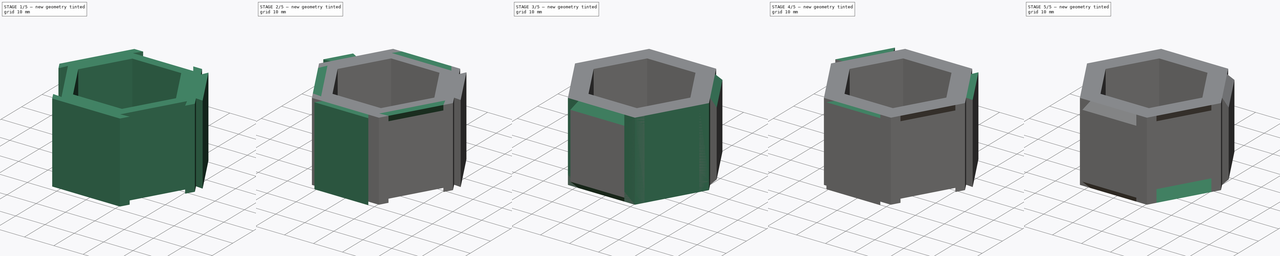
[diagram: build sequence overview — one tinted view per stage of 5, left to right]
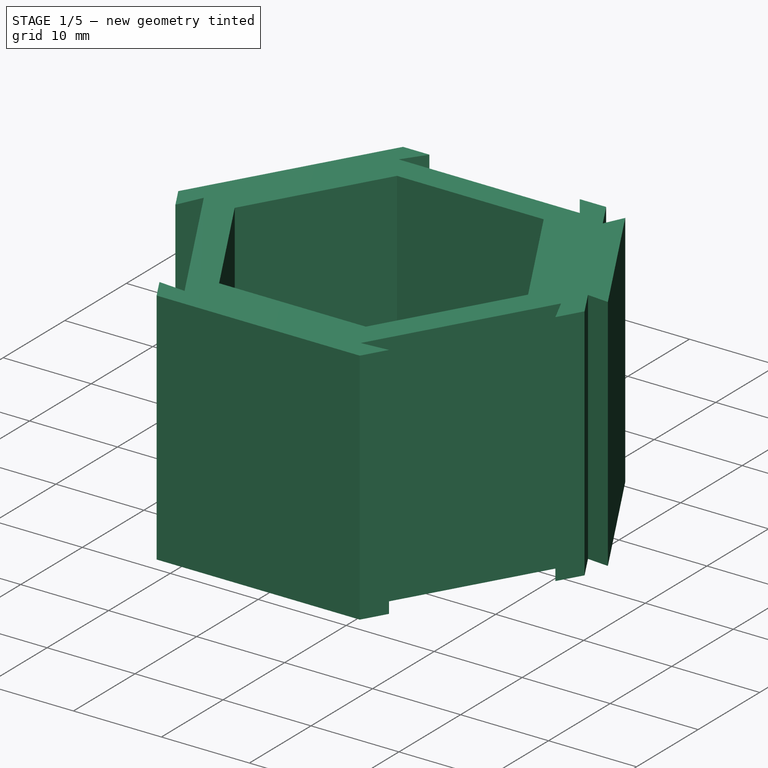
[diagram: stage 1 of 5 — iso view after this stage's code; geometry added in this stage tinted green]
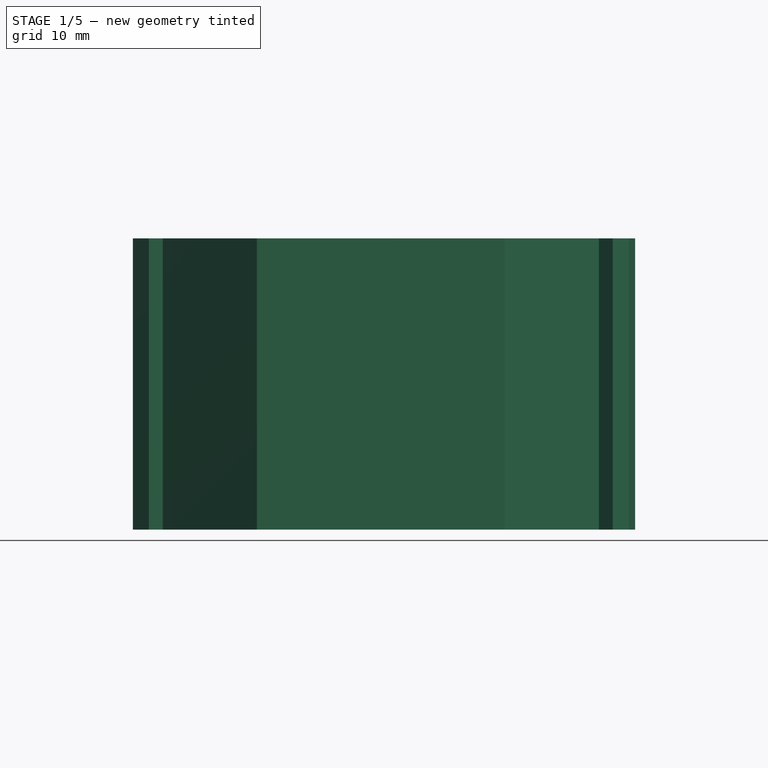
[diagram: stage 1 of 5 — front view after this stage's code; geometry added in this stage tinted green]
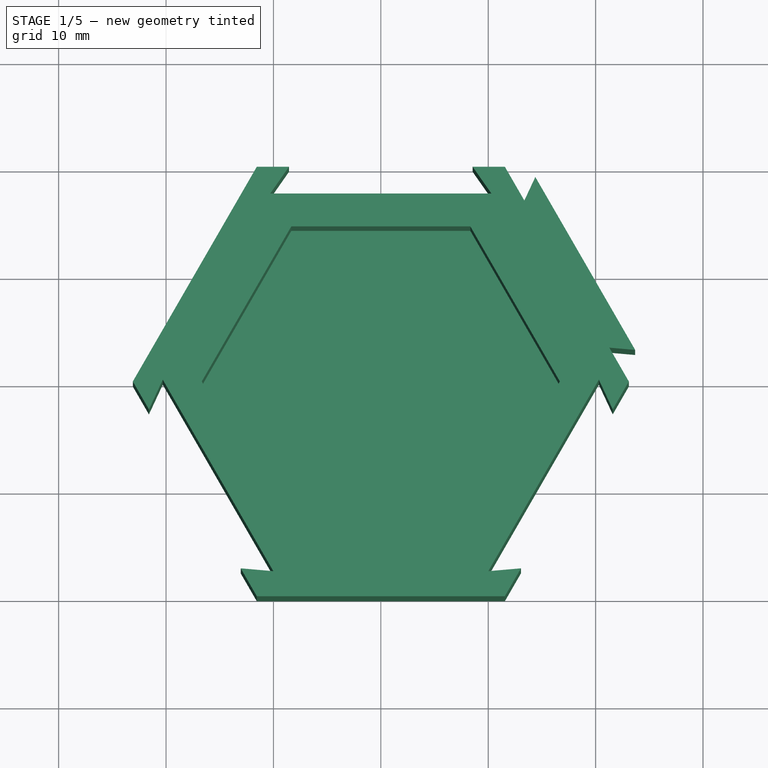
[diagram: stage 1 of 5 — top view after this stage's code; geometry added in this stage tinted green]
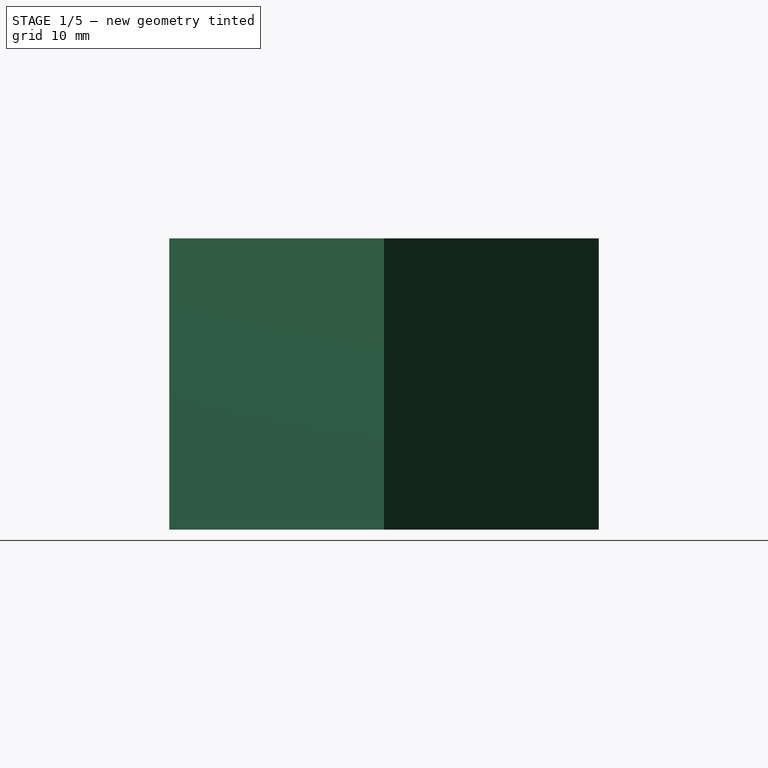
[diagram: stage 1 of 5 — right view after this stage's code; geometry added in this stage tinted green]
FCSTD DOCUMENT  (FreeCAD 2022.505R14555 (Git shallow))
Label: bottles_container
License: All rights reserved
objects: Sketcher::SketchObject×12, PartDesign::Pad×8, PartDesign::PolarPattern×8, PartDesign::Plane×4, PartDesign::Pocket×4, PartDesign::Mirrored×4, PartDesign::Body×2, Spreadsheet::Sheet×1
note: 90 computed .brp shape members not serialized (recipe doc carries the construction recipe); baked Part::Feature solids carry a one-line shape summary decoded from their .brp

FEATURE [PartDesign::Body] Body004  label="Modular box double joint"
  AutoGroupSolids = false
  ClaimAllChildren = false
  ExportMode = 0
  Group = -> [Sketch023,Pad007,Sketch024,Pad008,Sketch025,Pocket011,PolarPattern004,Sketch026,Pad009,PolarPattern005,DatumPlane002,Sketch027,Pad010,Mirrored005,PolarPattern006,DatumPlane003,Sketch028,Pocket012,Mirrored006,PolarPattern007]
  Origin = -> Origin004
  Tip = -> PolarPattern007
  TreeRank = 0
  _ExportChildren = -> [Pad007,Pad008,Pocket011,PolarPattern004,Pad009,PolarPattern005,DatumPlane002,Pad010,Mirrored005,PolarPattern006,DatumPlane003,Pocket012,Mirrored006,PolarPattern007]
  _GroupVersion = 1
FEATURE [PartDesign::Plane] DatumPlane004
  AttachmentOffset = pos=(0,0,0) rot=(0,1,0;0.523599rad)
  Length = 10
  MapMode = 5
  MinimumLength = 10
  MinimumWidth = 10
  Placement = pos=(0,0,0) rot=(0.935113,0.250563,0.250563;1.63783rad)
  ResizeMode = 0
  Support = -> [XZ_Plane005]
  TreeRank = 0
  Width = 10
FEATURE [PartDesign::Plane] DatumPlane005
  AttachmentOffset = pos=(0,0,0) rot=(0,-1,0;0.523599rad)
  Length = 79.989
  MapMode = 5
  MinimumLength = 10
  MinimumWidth = 10
  Placement = pos=(0,0,0) rot=(0.935113,-0.250563,-0.250563;1.63783rad)
  ResizeMode = 0
  Support = -> [XZ_Plane005]
  TreeRank = 0
  Width = 61.6877
FEATURE [Sketcher::SketchObject] Sketch029
  FullyConstrained = true
  MapMode = 2
  TreeRank = 0
  expr: Constraints[18] = Spreadsheet.current_bottle_d + Spreadsheet.insert_clearance * 2
  expr: Constraints[39] = Spreadsheet.box_outer_width
  sketch-geometry (14):
    g0: LineSegment StartX=8.33694 StartY=-14.44 StartZ=0 EndX=16.6739 EndY=8.8463e-12 EndZ=0
    g1: LineSegment StartX=16.6739 StartY=8.8468e-12 StartZ=0 EndX=8.33694 EndY=14.44 EndZ=0
    g2: LineSegment StartX=8.33694 StartY=14.44 StartZ=0 EndX=-8.33694 EndY=14.44 EndZ=0
    g3: LineSegment StartX=-8.33694 StartY=14.44 StartZ=0 EndX=-16.6739 EndY=5.8815e-12 EndZ=0
    g4: LineSegment StartX=-16.6739 StartY=5.8817e-12 StartZ=0 EndX=-8.33694 EndY=-14.44 EndZ=0
    g5: LineSegment StartX=-8.33694 StartY=-14.44 StartZ=0 EndX=8.33694 EndY=-14.44 EndZ=0
    g6: Circle [constr] CenterX=0 CenterY=0 CenterZ=0 NormalX=0 NormalY=0 NormalZ=1 AngleXU=0 Radius=16.6739
    g7: LineSegment StartX=11.547 StartY=-20 StartZ=0 EndX=23.094 EndY=-9.273e-13 EndZ=0
    g8: LineSegment StartX=23.094 StartY=-9.266e-13 StartZ=0 EndX=11.547 EndY=20 EndZ=0
    g9: LineSegment StartX=11.547 StartY=20 StartZ=0 EndX=-11.547 EndY=20 EndZ=0
    g10: LineSegment StartX=-11.547 StartY=20 StartZ=0 EndX=-23.094 EndY=9.237e-13 EndZ=0
    g11: LineSegment StartX=-23.094 StartY=9.231e-13 StartZ=0 EndX=-11.547 EndY=-20 EndZ=0
    g12: LineSegment StartX=-11.547 StartY=-20 StartZ=0 EndX=11.547 EndY=-20 EndZ=0
    g13: Circle [constr] CenterX=0 CenterY=0 CenterZ=0 NormalX=0 NormalY=0 NormalZ=1 AngleXU=0 Radius=23.094
  constraints (32):
    c: Coincident(g0,g1)
    c: Coincident(g1,g2)
    c: Coincident(g2,g3)
    c: Coincident(g3,g4)
    c: Coincident(g4,g5)
    c: Coincident(g5,g0)
    c: Equal(g0, g1-g5) x5
    c: PointOnObject(g0,g6)
    c: PointOnObject(g1,g6)
    c: PointOnObject(g2,g6)
    c: PointOnObject(g3,g6)
    c: PointOnObject(g4,g6)
    c: PointOnObject(g5,g6)
    c: Coincident(g6,g-1)
    c: Distance(g0,g2) = 28.88
    c: Parallel(g2,g-1)
    c: Coincident(g7,g8)
    c: Coincident(g8,g9)
    c: Coincident(g9,g10)
    c: Coincident(g10,g11)
    c: Coincident(g11,g12)
    c: Coincident(g12,g7)
    c: Equal(g7, g8-g12) x5
    c: PointOnObject(g7,g13)
    c: PointOnObject(g8,g13)
    c: PointOnObject(g9,g13)
    c: PointOnObject(g10,g13)
    c: PointOnObject(g11,g13)
    c: PointOnObject(g12,g13)
    c: Coincident(g13,g6)
    c: Parallel(g9,g2)
    c: Distance(g9,g12) = 40
FEATURE [PartDesign::Pad] Pad011
  AddSubType = 0
  CheckUpToFaceLimits = true
  ClaimChildren = false
  Direction = (0,0,1)
  Fit = 0
  FitJoin = 0
  InnerFit = 0
  InnerFitJoin = 0
  InnerTaperAngle = 0
  InnerTaperAngleRev = 0
  Length = 24
  Length2 = 100
  NewSolid = false
  Profile = -> Sketch029
  Suppress = false
  TreeRank = 0
  Type = 0
  _ProfileBasedVersion = 0
  expr: Length = Spreadsheet.insert_depth
FEATURE [Sketcher::SketchObject] Sketch030
  ExternalGeometry = -> [Pad011]
  FullyConstrained = true
  MapMode = 5
  Placement = pos=(0,0,0) rot=(1,0,0;3.14159rad)
  Support = -> [Pad011]
  TreeRank = 0
  sketch-geometry (7):
    g0: LineSegment StartX=11.547 StartY=-20 StartZ=0 EndX=23.094 EndY=-1.3145e-12 EndZ=0
    g1: LineSegment StartX=23.094 StartY=-1.3145e-12 StartZ=0 EndX=11.547 EndY=20 EndZ=0
    g2: LineSegment StartX=11.547 StartY=20 StartZ=0 EndX=-11.547 EndY=20 EndZ=0
    g3: LineSegment StartX=-11.547 StartY=20 StartZ=0 EndX=-23.094 EndY=1.4531e-12 EndZ=0
    g4: LineSegment StartX=-23.094 StartY=1.4531e-12 StartZ=0 EndX=-11.547 EndY=-20 EndZ=0
    g5: LineSegment StartX=-11.547 StartY=-20 StartZ=0 EndX=11.547 EndY=-20 EndZ=0
    g6: Circle [constr] CenterX=0 CenterY=0 CenterZ=0 NormalX=0 NormalY=0 NormalZ=1 AngleXU=0 Radius=23.094
  constraints (15):
    c: Coincident(g0,g1)
    c: Coincident(g1,g2)
    c: Coincident(g2,g3)
    c: Coincident(g3,g4)
    c: Coincident(g4,g5)
    c: Coincident(g5,g0)
    c: Equal(g0, g1-g5) x5
    c: PointOnObject(g0,g6)
    c: PointOnObject(g1,g6)
    c: PointOnObject(g2,g6)
    c: PointOnObject(g3,g6)
    c: PointOnObject(g4,g6)
    c: PointOnObject(g5,g6)
    c: Coincident(g6,g-1)
    c: Coincident(g5,g-6)
FEATURE [PartDesign::Pad] Pad012
  AddSubType = 0
  BaseFeature = -> Pad011
  CheckUpToFaceLimits = true
  ClaimChildren = false
  Direction = (0,0,-1)
  Fit = 0
  FitJoin = 0
  InnerFit = 0
  InnerFitJoin = 0
  InnerTaperAngle = 0
  InnerTaperAngleRev = 0
  Length = 3.12
  Length2 = 100
  NewSolid = false
  Profile = -> Sketch030
  Suppress = false
  TreeRank = 0
  Type = 0
  _ProfileBasedVersion = 0
  expr: Length = Spreadsheet.box_bottom_height
FEATURE [Sketcher::SketchObject] Sketch031
  ExternalGeometry = -> [Pad012]
  FullyConstrained = true
  MapMode = 5
  Placement = pos=(0,0,24) rot=(0,0,1;0rad)
  Support = -> [Pad012]
  TreeRank = 0
  expr: Constraints[9] = Spreadsheet.joint_depth
  sketch-geometry (7):
    g0: LineSegment StartX=-21.594 StartY=-2.59808 StartZ=0 EndX=-20.3042 EndY=0.167918 EndZ=0
    g1: LineSegment StartX=-20.3042 StartY=0.167918 StartZ=0 EndX=-10.0067 EndY=-17.6679 EndZ=0
    g2: LineSegment StartX=-21.594 StartY=-2.59808 StartZ=0 EndX=-13.047 EndY=-17.4019 EndZ=0
    g3: LineSegment StartX=-13.047 StartY=-17.4019 StartZ=0 EndX=-10.0067 EndY=-17.6679 EndZ=0
    g4: LineSegment [constr] StartX=-15.1554 StartY=-8.75 StartZ=0 EndX=-17.3205 EndY=-10 EndZ=0
    g5: LineSegment [constr] StartX=-23.094 StartY=6.162e-12 StartZ=0 EndX=-21.594 EndY=-2.59808 EndZ=0
    g6: LineSegment [constr] StartX=-13.047 StartY=-17.4019 StartZ=0 EndX=-11.547 EndY=-20 EndZ=0
  constraints (19):
    c: Coincident(g1,g0)
    c: Coincident(g2,g0)
    c: Angle(g2,g0) = 2.18166
    c: Coincident(g2,g3)
    c: Coincident(g1,g3)
    c: Angle(g3,g2) = 2.18166
    c: Parallel(g1,g2)
    c: PointOnObject(g4,g1)
    c: Perpendicular(g1,g4)
    c: Distance(g4) = 2.5
    c: Coincident(g5,g-6)
    c: Coincident(g5,g0)
    c: Coincident(g6,g2)
    c: Coincident(g6,g-6)
    c: Equal(g5,g6)
    c: PointOnObject(g0,g-6)
    c: PointOnObject(g2,g-6)
    c: Distance(g5) = 3
    c: Symmetric(g0,g2,g4)
FEATURE [PartDesign::Pocket] Pocket013
  AddSubType = 1
  BaseFeature = -> Pad012
  CheckUpToFaceLimits = true
  ClaimChildren = false
  Fit = 0
  FitJoin = 0
  InnerFit = 0
  InnerFitJoin = 0
  InnerTaperAngle = 0
  InnerTaperAngleRev = 0
  Length = 5
  Length2 = 100
  NewSolid = false
  Profile = -> Sketch031
  Suppress = false
  TreeRank = 0
  Type = 1
  _ProfileBasedVersion = 0
  _Version = 0
FEATURE [PartDesign::PolarPattern] PolarPattern008
  AddSubType = 0
  Angle = 360
  Axis = -> Sketch031 [N_Axis]
  BaseFeature = -> Pocket013
  CopyShape = true
  NewSolid = false
  Occurrences = 3
  OriginalSubs = -> [Pocket013]
  Originals = -> [Pocket013]
  ParallelTransform = true
  SubTransform = true
  Suppress = false
  TreeRank = 0
  _Version = 0
FEATURE [Sketcher::SketchObject] Sketch032
  ExternalGeometry = -> [Pad012]
  FullyConstrained = true
  MapMode = 5
  Placement = pos=(0,0,24) rot=(0,0,1;0rad)
  Support = -> [PolarPattern008]
  TreeRank = 0
  expr: Constraints[17] = Sketch031.Constraints[17]
  expr: Constraints[2] = Sketch031.Constraints[2]
  expr: Constraints[57] = Spreadsheet.joint_clearance
  expr: Constraints[5] = Sketch031.Constraints[5]
  expr: Constraints[9] = Sketch031.Constraints[9]
  sketch-geometry (21):
    g0: LineSegment [constr] StartX=-21.594 StartY=-2.59808 StartZ=0 EndX=-20.3042 EndY=0.167918 EndZ=0
    g1: LineSegment [constr] StartX=-20.3042 StartY=0.167918 StartZ=0 EndX=-10.0067 EndY=-17.6679 EndZ=0
    g2: LineSegment [constr] StartX=-21.594 StartY=-2.59808 StartZ=0 EndX=-13.047 EndY=-17.4019 EndZ=0
    g3: LineSegment [constr] StartX=-13.047 StartY=-17.4019 StartZ=0 EndX=-10.0067 EndY=-17.6679 EndZ=0
    g4: LineSegment [constr] StartX=-15.1554 StartY=-8.75 StartZ=0 EndX=-17.3205 EndY=-10 EndZ=0
    g5: LineSegment [constr] StartX=-23.094 StartY=6.162e-12 StartZ=0 EndX=-21.594 EndY=-2.59808 EndZ=0
    g6: LineSegment [constr] StartX=-13.047 StartY=-17.4019 StartZ=0 EndX=-11.547 EndY=-20 EndZ=0
    g7: LineSegment [constr] StartX=13.047 StartY=17.4019 StartZ=0 EndX=14.3368 EndY=20.1679 EndZ=0
    g8: LineSegment [constr] StartX=14.3368 StartY=20.1679 StartZ=0 EndX=24.6343 EndY=2.33208 EndZ=0
    g9: LineSegment [constr] StartX=13.047 StartY=17.4019 StartZ=0 EndX=21.594 EndY=2.59808 EndZ=0
    g10: LineSegment [constr] StartX=21.594 StartY=2.59808 StartZ=0 EndX=24.6343 EndY=2.33208 EndZ=0
    g11: LineSegment [constr] StartX=19.4856 StartY=11.25 StartZ=0 EndX=17.3205 EndY=10 EndZ=0
    g12: LineSegment [constr] StartX=11.547 StartY=20 StartZ=0 EndX=13.047 EndY=17.4019 EndZ=0
    g13: LineSegment [constr] StartX=21.594 StartY=2.59808 StartZ=0 EndX=23.094 EndY=4.45e-13 EndZ=0
    g14: LineSegment StartX=13.3644 StartY=16.8522 StartZ=0 EndX=21.2766 EndY=3.14783 EndZ=0
    g15: LineSegment StartX=21.2766 StartY=3.14783 StartZ=0 EndX=23.6845 EndY=2.93716 EndZ=0
    g16: LineSegment StartX=23.6845 StartY=2.93716 StartZ=0 EndX=14.3859 EndY=19.0428 EndZ=0
    g17: LineSegment StartX=14.3859 StartY=19.0428 StartZ=0 EndX=13.3644 EndY=16.8522 EndZ=0
    g18: LineSegment [constr] StartX=14.3859 StartY=19.0428 StartZ=0 EndX=13.9147 EndY=19.2626 EndZ=0
    g19: LineSegment [constr] StartX=14.3859 StartY=19.0428 StartZ=0 EndX=14.8363 EndY=19.3028 EndZ=0
    g20: LineSegment [constr] StartX=23.6845 StartY=2.93716 StartZ=0 EndX=23.6392 EndY=2.41914 EndZ=0
  constraints (59):
    c: Coincident(g1,g0)
    c: Coincident(g2,g0)
    c: Angle(g2,g0) = 2.18166
    c: Coincident(g2,g3)
    c: Coincident(g1,g3)
    c: Angle(g3,g2) = 2.18166
    c: Parallel(g1,g2)
    c: PointOnObject(g4,g1)
    c: Perpendicular(g1,g4)
    c: Distance(g4) = 2.5
    c: Coincident(g5,g-6)
    c: Coincident(g5,g0)
    c: Coincident(g6,g2)
    c: Coincident(g6,g-6)
    c: Equal(g5,g6)
    c: PointOnObject(g0,g-6)
    c: PointOnObject(g2,g-6)
    c: Distance(g5) = 3
    c: Symmetric(g0,g2,g4)
    c: Coincident(g8,g7)
    c: Coincident(g9,g7)
    c: Angle(g9,g7) = 2.18166
    c: Coincident(g9,g10)
    c: Coincident(g8,g10)
    c: Angle(g10,g9) = 2.18166
    c: Parallel(g8,g9)
    c: PointOnObject(g11,g8)
    c: Perpendicular(g8,g11)
    c: Equal(g4,g11) = 1.5
    c: Coincident(g12,g7)
    c: Coincident(g13,g9)
    c: Equal(g12,g13)
    c: Equal(g5,g12) = 3
    c: Symmetric(g7,g9,g11)
    c: Coincident(g12,g-7)
    c: Coincident(g13,g-7)
    c: PointOnObject(g7,g-7)
    c: PointOnObject(g9,g-7)
    c: PointOnObject(g14,g9)
    c: PointOnObject(g14,g9)
    c: Coincident(g14,g15)
    c: Coincident(g15,g16)
    c: Coincident(g16,g17)
    c: Coincident(g17,g14)
    c: Parallel(g16,g8)
    c: Parallel(g17,g7)
    c: Parallel(g10,g15)
    c: Coincident(g18,g16)
    c: PointOnObject(g18,g7)
    c: Coincident(g19,g16)
    c: PointOnObject(g19,g8)
    c: Coincident(g20,g15)
    c: PointOnObject(g20,g10)
    c: Perpendicular(g10,g20)
    c: Perpendicular(g16,g19)
    c: Perpendicular(g17,g18)
    c: Equal(g18,g19)
    c: Distance(g18) = 0.52
    c: Equal(g20,g19)
FEATURE [PartDesign::Pad] Pad013
  AddSubType = 0
  BaseFeature = -> PolarPattern008
  CheckUpToFaceLimits = true
  ClaimChildren = false
  Direction = (0,0,1)
  Fit = 0
  FitJoin = 0
  InnerFit = 0
  InnerFitJoin = 0
  InnerTaperAngle = 0
  InnerTaperAngleRev = 0
  Length = 10
  Length2 = 100
  NewSolid = false
  Profile = -> Sketch032
  Reversed = true
  Suppress = false
  TreeRank = 0
  Type = 3
  UpToFace = -> PolarPattern008 [Face7]
  _ProfileBasedVersion = 0
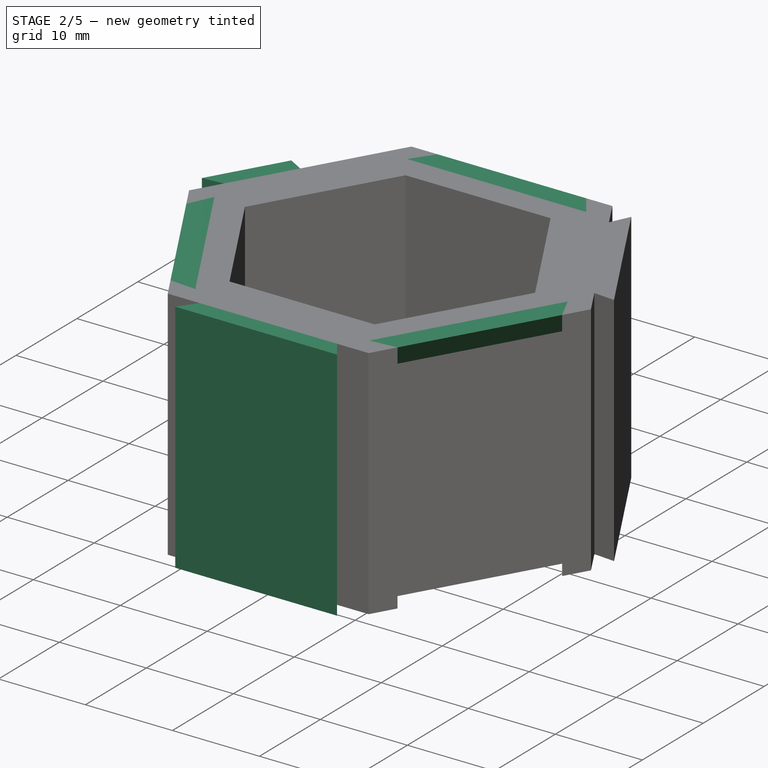
[diagram: stage 2 of 5 — iso view after this stage's code; geometry added in this stage tinted green]
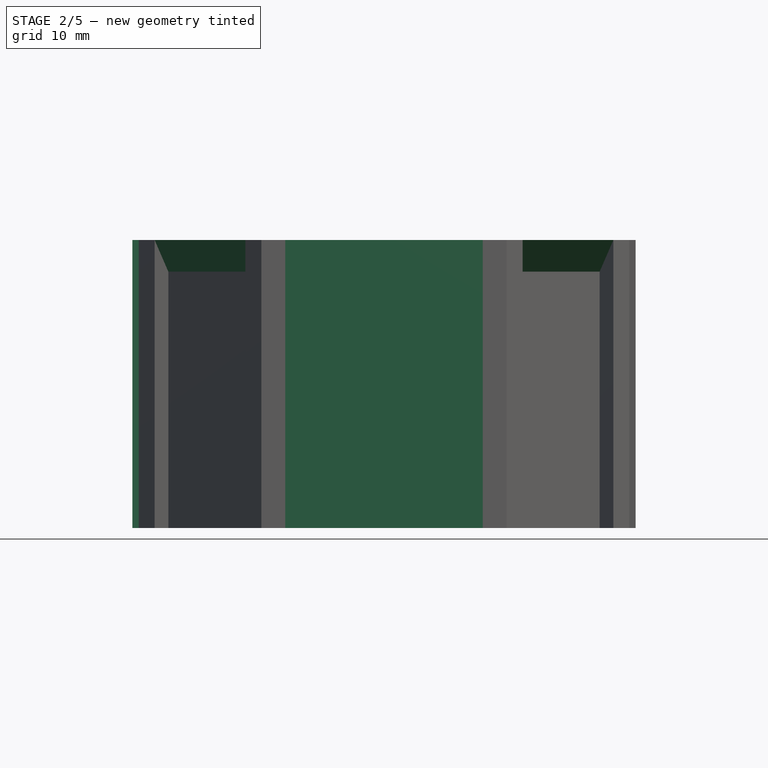
[diagram: stage 2 of 5 — front view after this stage's code; geometry added in this stage tinted green]
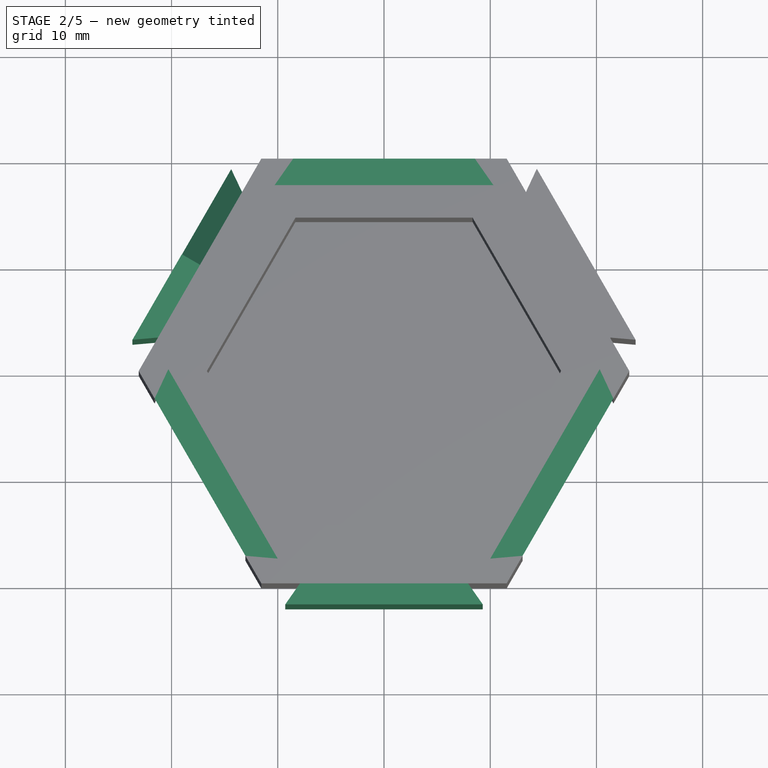
[diagram: stage 2 of 5 — top view after this stage's code; geometry added in this stage tinted green]
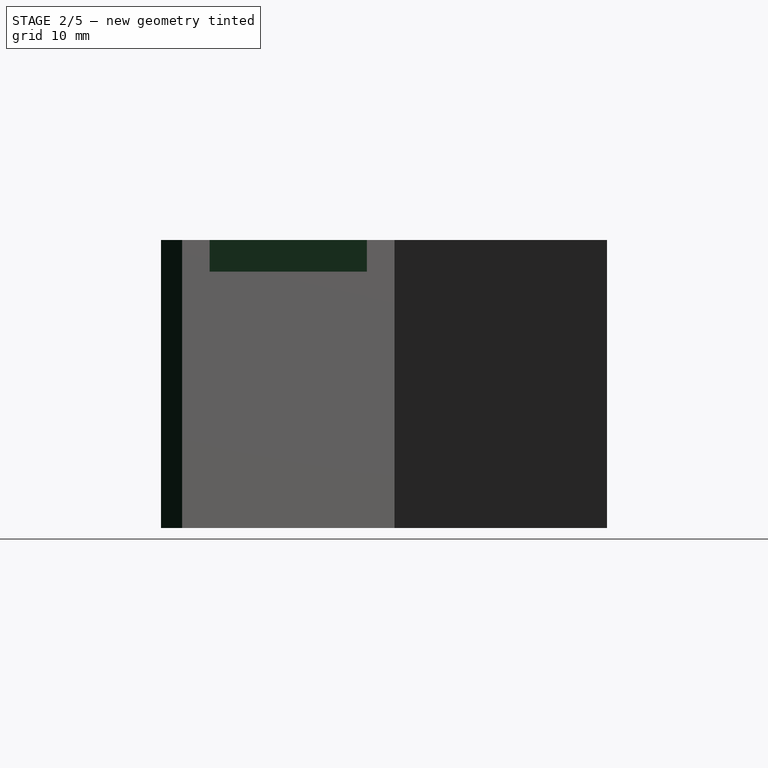
[diagram: stage 2 of 5 — right view after this stage's code; geometry added in this stage tinted green]
FEATURE [PartDesign::PolarPattern] PolarPattern009
  AddSubType = 0
  Angle = 360
  Axis = -> Sketch032 [N_Axis]
  BaseFeature = -> Pad013
  CopyShape = true
  NewSolid = false
  Occurrences = 3
  OriginalSubs = -> [Pad013]
  Originals = -> [Pad013]
  ParallelTransform = true
  SubTransform = true
  Suppress = false
  TreeRank = 0
  _Version = 0
FEATURE [Sketcher::SketchObject] Sketch033
  ExternalGeometry = -> [PolarPattern009]
  FullyConstrained = true
  MapMode = 5
  Placement = pos=(0,0,0) rot=(0.935113,0.250563,0.250563;1.63783rad)
  Support = -> [DatumPlane004]
  TreeRank = 0
  expr: Constraints[3] = Spreadsheet.joint_ledge_angle
  sketch-geometry (3):
    g0: LineSegment StartX=-20 StartY=24 StartZ=0 EndX=-17.5 EndY=21.0206 EndZ=0
    g1: LineSegment StartX=-17.5 StartY=21.0206 StartZ=0 EndX=-17.5 EndY=24 EndZ=0
    g2: LineSegment StartX=-17.5 StartY=24 StartZ=0 EndX=-20 EndY=24 EndZ=0
  constraints (7):
    c: Coincident(g0,g1)
    c: Coincident(g1,g2)
    c: Coincident(g2,g0)
    c: Angle(g1,g0) = 0.698132
    c: Coincident(g-6,g0)
    c: Coincident(g1,g-5)
    c: PointOnObject(g0,g-5)
FEATURE [PartDesign::Pad] Pad014
  AddSubType = 0
  AlongSketchNormal = false
  BaseFeature = -> PolarPattern009
  CheckUpToFaceLimits = true
  ClaimChildren = false
  Direction = (0.5,-0.866025,-1e-16)
  Fit = 0
  FitJoin = 0
  InnerFit = 0
  InnerFitJoin = 0
  InnerTaperAngle = 0
  InnerTaperAngleRev = 0
  Length = 10
  Length2 = 100
  NewSolid = false
  Profile = -> Sketch033
  Suppress = false
  TreeRank = 0
  Type = 3
  UpToFace = -> PolarPattern009 [Face10]
  _ProfileBasedVersion = 0
FEATURE [PartDesign::Mirrored] Mirrored007
  AddSubType = 0
  BaseFeature = -> Pad014
  CopyShape = true
  MirrorPlane = -> DatumPlane004
  NewSolid = false
  OriginalSubs = -> [Pad014]
  Originals = -> [Pad014]
  ParallelTransform = true
  SubTransform = true
  Suppress = false
  TreeRank = 0
  _Version = 0
FEATURE [PartDesign::PolarPattern] PolarPattern010
  AddSubType = 0
  Angle = 360
  Axis = -> Z_Axis005
  BaseFeature = -> Mirrored007
  CopyShape = true
  NewSolid = false
  Occurrences = 3
  OriginalSubs = -> [Mirrored007,Pad014]
  Originals = -> [Mirrored007,Pad014]
  ParallelTransform = true
  SubTransform = true
  Suppress = false
  TreeRank = 0
  _Version = 0
FEATURE [Sketcher::SketchObject] Sketch034
  ExternalGeometry = -> [PolarPattern009]
  FullyConstrained = true
  MapMode = 5
  Placement = pos=(0,0,0) rot=(0.935113,-0.250563,-0.250563;1.63783rad)
  Support = -> [DatumPlane005]
  TreeRank = 0
  expr: Constraints[12] = 90 - Spreadsheet.joint_ledge_angle
  expr: Constraints[13] = 90 - Spreadsheet.joint_ledge_angle
  sketch-geometry (6):
    g0: LineSegment StartX=-21.98 StartY=24 StartZ=0 EndX=-21.98 EndY=21.6403 EndZ=0
    g1: LineSegment StartX=-21.98 StartY=21.6403 StartZ=0 EndX=-20 EndY=24 EndZ=0
    g2: LineSegment StartX=-20 StartY=24 StartZ=0 EndX=-21.98 EndY=24 EndZ=0
    g3: LineSegment StartX=-20 StartY=-3.12 StartZ=0 EndX=-21.98 EndY=-3.12 EndZ=0
    g4: LineSegment StartX=-21.98 StartY=-3.12 StartZ=0 EndX=-21.98 EndY=-0.760328 EndZ=0
    g5: LineSegment StartX=-21.98 StartY=-0.760328 StartZ=0 EndX=-20 EndY=-3.12 EndZ=0
  constraints (14):
    c: Coincident(g-5,g0)
    c: PointOnObject(g0,g-4)
    c: Coincident(g0,g1)
    c: Coincident(g1,g-5)
    c: Coincident(g1,g2)
    c: Coincident(g2,g0)
    c: Coincident(g-7,g3)
    c: Coincident(g3,g-7)
    c: Coincident(g3,g4)
    c: PointOnObject(g4,g-4)
    c: Coincident(g4,g5)
    c: Coincident(g5,g3)
    c: Angle(g-5,g1) = 0.872665
    c: Angle(g5,g3) = 0.872665
FEATURE [PartDesign::Pocket] Pocket014
  AddSubType = 1
  BaseFeature = -> PolarPattern010
  CheckUpToFaceLimits = true
  ClaimChildren = false
  Fit = 0
  FitJoin = 0
  InnerFit = 0
  InnerFitJoin = 0
  InnerTaperAngle = 0
  InnerTaperAngleRev = 0
  Length = 0
  Length2 = 100
  NewSolid = false
  Profile = -> Sketch034
  Suppress = false
  TreeRank = 0
  Type = 3
  UpToFace = -> PolarPattern010 [Face59]
  _ProfileBasedVersion = 0
  _Version = 0
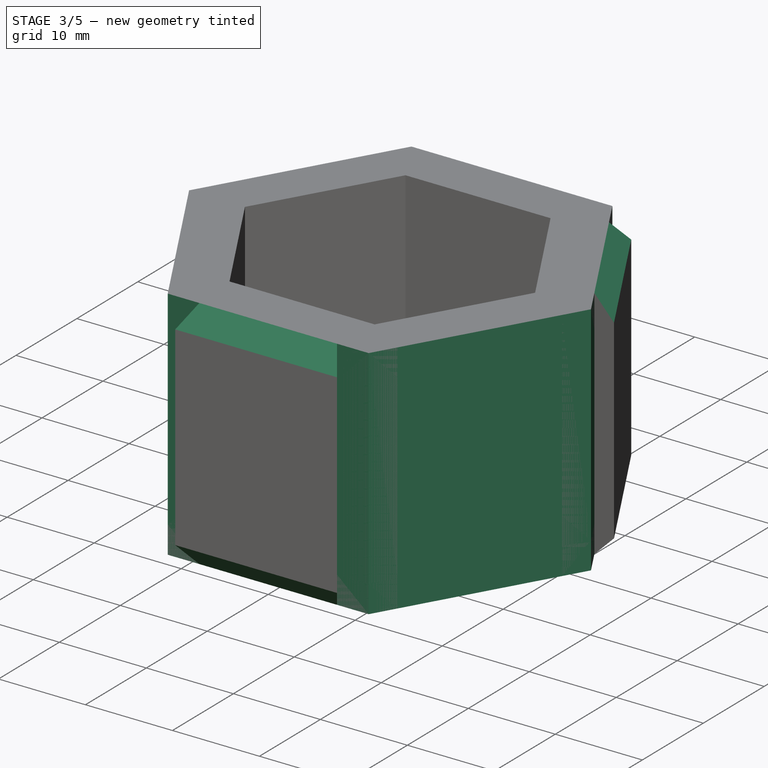
[diagram: stage 3 of 5 — iso view after this stage's code; geometry added in this stage tinted green]
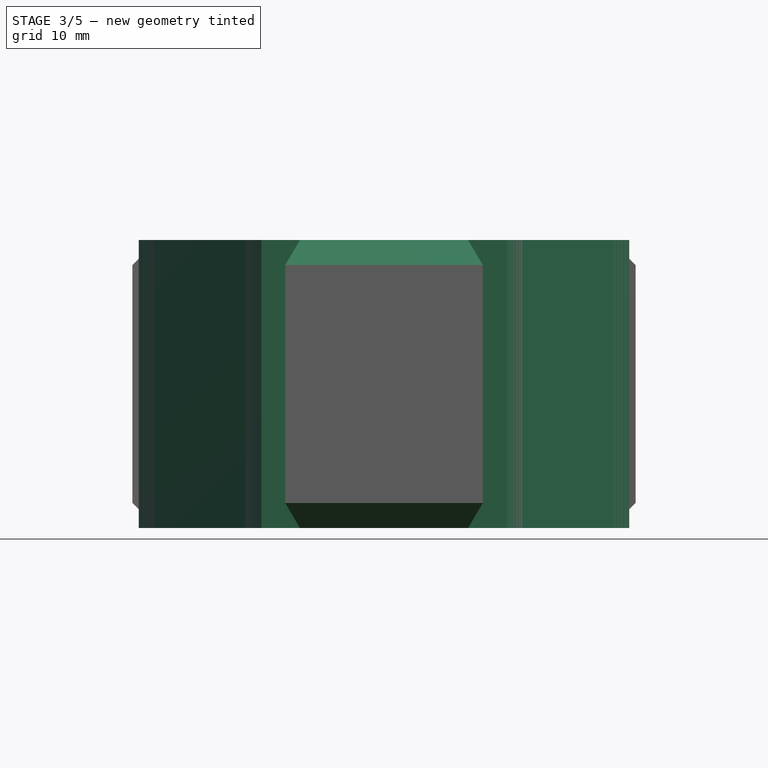
[diagram: stage 3 of 5 — front view after this stage's code; geometry added in this stage tinted green]
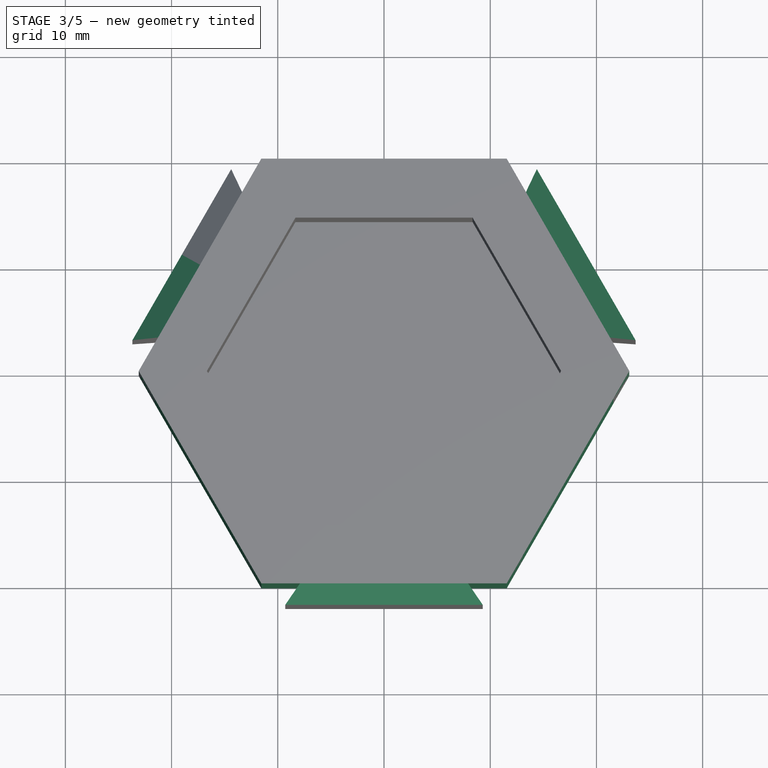
[diagram: stage 3 of 5 — top view after this stage's code; geometry added in this stage tinted green]
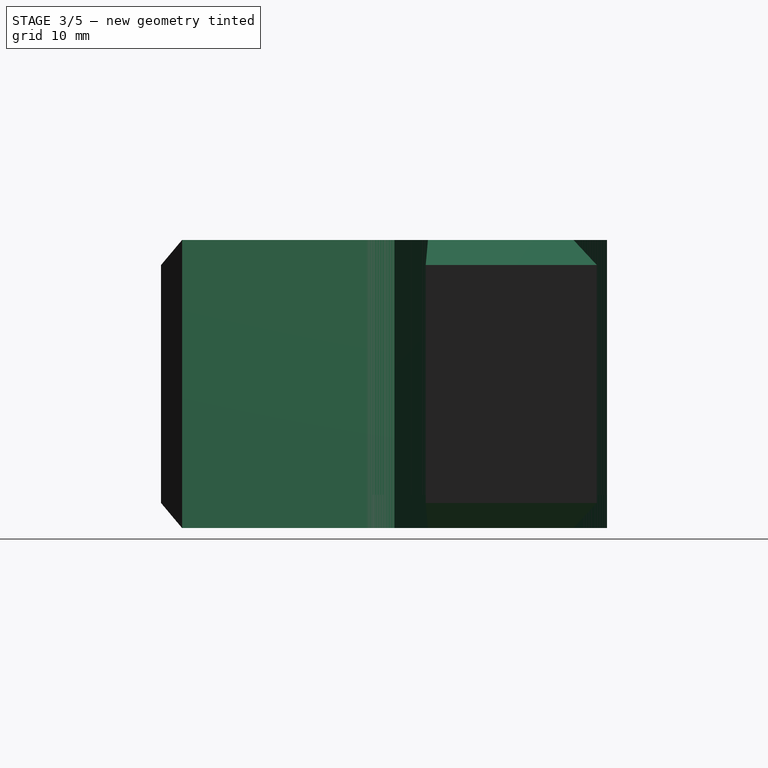
[diagram: stage 3 of 5 — right view after this stage's code; geometry added in this stage tinted green]
FEATURE [Spreadsheet::Sheet] Spreadsheet
  PythonMode = false
  ShowCells = 0
  TreeRank = 0
  cells = A1=Slots per step; B1(slots_per_step)=5; A2=Separator width; B2(separator_width)==3mm; A3=Insert depth; B3(insert_depth)==24mm; A4=Bottle 1 d; B4(bottle_1_d)==33.6mm; A5=Bootle 2 d; B5(bottle_2_d)==28.5mm; A6=Bootle 3 d; B6(bottle_3_d)==25.3mm; A7=Insert clearance; B7(insert_clearance)=0.19 mm; A8=Box bottom height; B8(box_bottom_height)==3.12mm; A9=Joint clearance; B9(joint_clearance)==0.52mm; A10=Joint depth; B10(joint_depth)==2.5mm; A11=Joint ledge angle; B11(joint_ledge_angle)=40; A12=Box outer width; B12(box_outer_width)==40mm; A13=Current bottle d; B13(current_bottle_d)=28.5 mm
FEATURE [PartDesign::Plane] DatumPlane002
  AttachmentOffset = pos=(0,0,0) rot=(0,1,0;0.523599rad)
  Length = 10
  MapMode = 5
  MinimumLength = 10
  MinimumWidth = 10
  Placement = pos=(0,0,0) rot=(0.935113,0.250563,0.250563;1.63783rad)
  ResizeMode = 0
  Support = -> [XZ_Plane004]
  TreeRank = 0
  Width = 10
FEATURE [PartDesign::Plane] DatumPlane003
  AttachmentOffset = pos=(0,0,0) rot=(0,-1,0;0.523599rad)
  Length = 62.0128
  MapMode = 5
  MinimumLength = 10
  MinimumWidth = 10
  Placement = pos=(0,0,0) rot=(0.935113,-0.250563,-0.250563;1.63783rad)
  ResizeMode = 0
  Support = -> [XZ_Plane004]
  TreeRank = 0
  Width = 27.12
FEATURE [Sketcher::SketchObject] Sketch023
  FullyConstrained = true
  MapMode = 2
  TreeRank = 0
  expr: Constraints[18] = Spreadsheet.current_bottle_d + Spreadsheet.insert_clearance * 2
  expr: Constraints[39] = Spreadsheet.box_outer_width
  sketch-geometry (14):
    g0: LineSegment StartX=8.33694 StartY=-14.44 StartZ=0 EndX=16.6739 EndY=8.8498e-12 EndZ=0
    g1: LineSegment StartX=16.6739 StartY=8.8503e-12 StartZ=0 EndX=8.33694 EndY=14.44 EndZ=0
    g2: LineSegment StartX=8.33694 StartY=14.44 StartZ=0 EndX=-8.33694 EndY=14.44 EndZ=0
    g3: LineSegment StartX=-8.33694 StartY=14.44 StartZ=0 EndX=-16.6739 EndY=5.8833e-12 EndZ=0
    g4: LineSegment StartX=-16.6739 StartY=5.8827e-12 StartZ=0 EndX=-8.33694 EndY=-14.44 EndZ=0
    g5: LineSegment StartX=-8.33694 StartY=-14.44 StartZ=0 EndX=8.33694 EndY=-14.44 EndZ=0
    g6: Circle [constr] CenterX=0 CenterY=0 CenterZ=0 NormalX=0 NormalY=0 NormalZ=1 AngleXU=0 Radius=16.6739
    g7: LineSegment StartX=11.547 StartY=-20 StartZ=0 EndX=23.094 EndY=-9.237e-13 EndZ=0
    g8: LineSegment StartX=23.094 StartY=-9.249e-13 StartZ=0 EndX=11.547 EndY=20 EndZ=0
    g9: LineSegment StartX=11.547 StartY=20 StartZ=0 EndX=-11.547 EndY=20 EndZ=0
    g10: LineSegment StartX=-11.547 StartY=20 StartZ=0 EndX=-23.094 EndY=9.237e-13 EndZ=0
    g11: LineSegment StartX=-23.094 StartY=9.254e-13 StartZ=0 EndX=-11.547 EndY=-20 EndZ=0
    g12: LineSegment StartX=-11.547 StartY=-20 StartZ=0 EndX=11.547 EndY=-20 EndZ=0
    g13: Circle [constr] CenterX=0 CenterY=0 CenterZ=0 NormalX=0 NormalY=0 NormalZ=1 AngleXU=0 Radius=23.094
  constraints (32):
    c: Coincident(g0,g1)
    c: Coincident(g1,g2)
    c: Coincident(g2,g3)
    c: Coincident(g3,g4)
    c: Coincident(g4,g5)
    c: Coincident(g5,g0)
    c: Equal(g0, g1-g5) x5
    c: PointOnObject(g0,g6)
    c: PointOnObject(g1,g6)
    c: PointOnObject(g2,g6)
    c: PointOnObject(g3,g6)
    c: PointOnObject(g4,g6)
    c: PointOnObject(g5,g6)
    c: Coincident(g6,g-1)
    c: Distance(g0,g2) = 28.88
    c: Parallel(g2,g-1)
    c: Coincident(g7,g8)
    c: Coincident(g8,g9)
    c: Coincident(g9,g10)
    c: Coincident(g10,g11)
    c: Coincident(g11,g12)
    c: Coincident(g12,g7)
    c: Equal(g7, g8-g12) x5
    c: PointOnObject(g7,g13)
    c: PointOnObject(g8,g13)
    c: PointOnObject(g9,g13)
    c: PointOnObject(g10,g13)
    c: PointOnObject(g11,g13)
    c: PointOnObject(g12,g13)
    c: Coincident(g13,g6)
    c: Parallel(g9,g2)
    c: Distance(g9,g12) = 40
FEATURE [PartDesign::Pad] Pad007
  AddSubType = 0
  CheckUpToFaceLimits = true
  ClaimChildren = false
  Direction = (0,0,1)
  Fit = 0
  FitJoin = 0
  InnerFit = 0
  InnerFitJoin = 0
  InnerTaperAngle = 0
  InnerTaperAngleRev = 0
  Length = 24
  Length2 = 100
  NewSolid = false
  Profile = -> Sketch023
  Suppress = false
  TreeRank = 0
  Type = 0
  _ProfileBasedVersion = 0
  expr: Length = Spreadsheet.insert_depth
FEATURE [Sketcher::SketchObject] Sketch024
  ExternalGeometry = -> [Pad007]
  FullyConstrained = true
  MapMode = 5
  Placement = pos=(0,0,0) rot=(1,0,0;3.14159rad)
  Support = -> [Pad007]
  TreeRank = 0
  sketch-geometry (7):
    g0: LineSegment StartX=11.547 StartY=-20 StartZ=0 EndX=23.094 EndY=-1.4282e-12 EndZ=0
    g1: LineSegment StartX=23.094 StartY=-1.4282e-12 StartZ=0 EndX=11.547 EndY=20 EndZ=0
    g2: LineSegment StartX=11.547 StartY=20 StartZ=0 EndX=-11.547 EndY=20 EndZ=0
    g3: LineSegment StartX=-11.547 StartY=20 StartZ=0 EndX=-23.094 EndY=1.5596e-12 EndZ=0
    g4: LineSegment StartX=-23.094 StartY=1.5596e-12 StartZ=0 EndX=-11.547 EndY=-20 EndZ=0
    g5: LineSegment StartX=-11.547 StartY=-20 StartZ=0 EndX=11.547 EndY=-20 EndZ=0
    g6: Circle [constr] CenterX=0 CenterY=0 CenterZ=0 NormalX=0 NormalY=0 NormalZ=1 AngleXU=0 Radius=23.094
  constraints (15):
    c: Coincident(g0,g1)
    c: Coincident(g1,g2)
    c: Coincident(g2,g3)
    c: Coincident(g3,g4)
    c: Coincident(g4,g5)
    c: Coincident(g5,g0)
    c: Equal(g0, g1-g5) x5
    c: PointOnObject(g0,g6)
    c: PointOnObject(g1,g6)
    c: PointOnObject(g2,g6)
    c: PointOnObject(g3,g6)
    c: PointOnObject(g4,g6)
    c: PointOnObject(g5,g6)
    c: Coincident(g6,g-1)
    c: Coincident(g5,g-6)
FEATURE [PartDesign::Pad] Pad008
  AddSubType = 0
  BaseFeature = -> Pad007
  CheckUpToFaceLimits = true
  ClaimChildren = false
  Direction = (0,0,-1)
  Fit = 0
  FitJoin = 0
  InnerFit = 0
  InnerFitJoin = 0
  InnerTaperAngle = 0
  InnerTaperAngleRev = 0
  Length = 3.12
  Length2 = 100
  NewSolid = false
  Profile = -> Sketch024
  Suppress = false
  TreeRank = 0
  Type = 0
  _ProfileBasedVersion = 0
  expr: Length = Spreadsheet.box_bottom_height
FEATURE [PartDesign::Mirrored] Mirrored008
  AddSubType = 0
  BaseFeature = -> Pocket014
  CopyShape = true
  MirrorPlane = -> DatumPlane005
  NewSolid = false
  OriginalSubs = -> [Pocket014]
  Originals = -> [Pocket014]
  ParallelTransform = true
  SubTransform = true
  Suppress = false
  TreeRank = 0
  _Version = 0
FEATURE [PartDesign::PolarPattern] PolarPattern
  AddSubType = 0
  Angle = 360
  Axis = -> Z_Axis005
  BaseFeature = -> Mirrored008
  CopyShape = false
  NewSolid = false
  Occurrences = 3
  OriginalSubs = -> [Mirrored008,Pocket014]
  Originals = -> [Mirrored008,Pocket014]
  ParallelTransform = true
  SubTransform = true
  Suppress = false
  TreeRank = 1
  _Version = 3
FEATURE [PartDesign::Body] Body005  label="Modular box double joint inverted"
  AutoGroupSolids = false
  ClaimAllChildren = false
  ExportMode = 0
  Group = -> [Sketch029,Pad011,Sketch030,Pad012,Sketch031,Pocket013,PolarPattern008,Sketch032,Pad013,PolarPattern009,DatumPlane004,Sketch033,Pad014,Mirrored007,PolarPattern010,DatumPlane005,Sketch034,Pocket014,Mirrored008,PolarPattern]
  Origin = -> Origin005
  Tip = -> PolarPattern
  TreeRank = 0
  _ExportChildren = -> [Pad011,Pad012,Pocket013,PolarPattern008,Pad013,PolarPattern009,DatumPlane004,Pad014,Mirrored007,PolarPattern010,DatumPlane005,Pocket014,Mirrored008,PolarPattern]
  _GroupVersion = 1
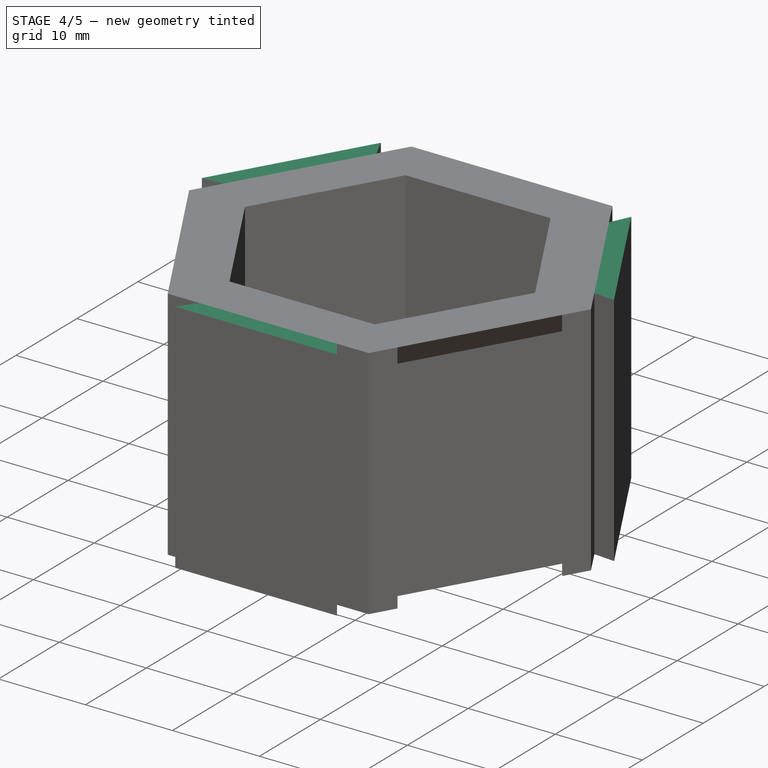
[diagram: stage 4 of 5 — iso view after this stage's code; geometry added in this stage tinted green]
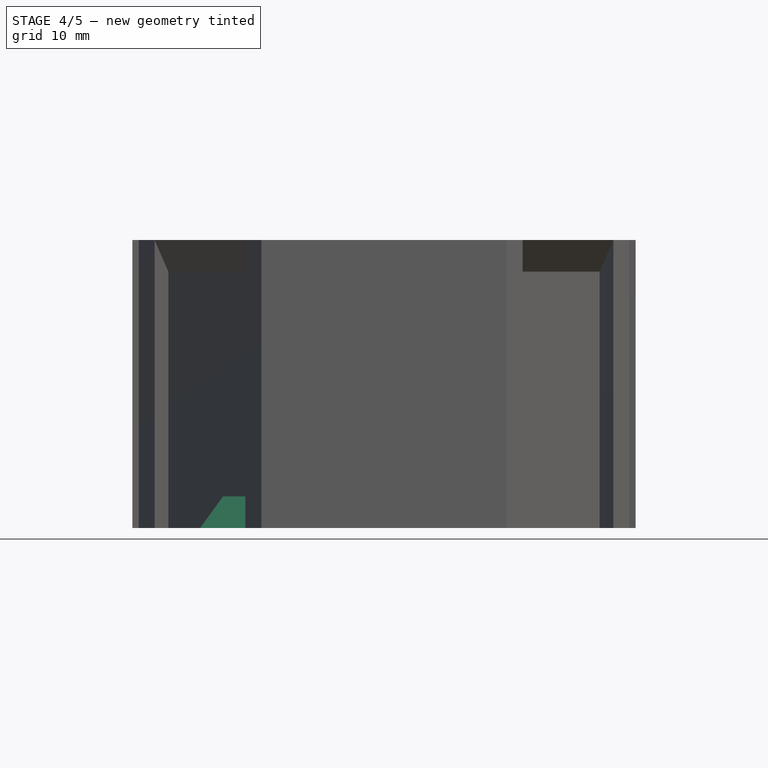
[diagram: stage 4 of 5 — front view after this stage's code; geometry added in this stage tinted green]
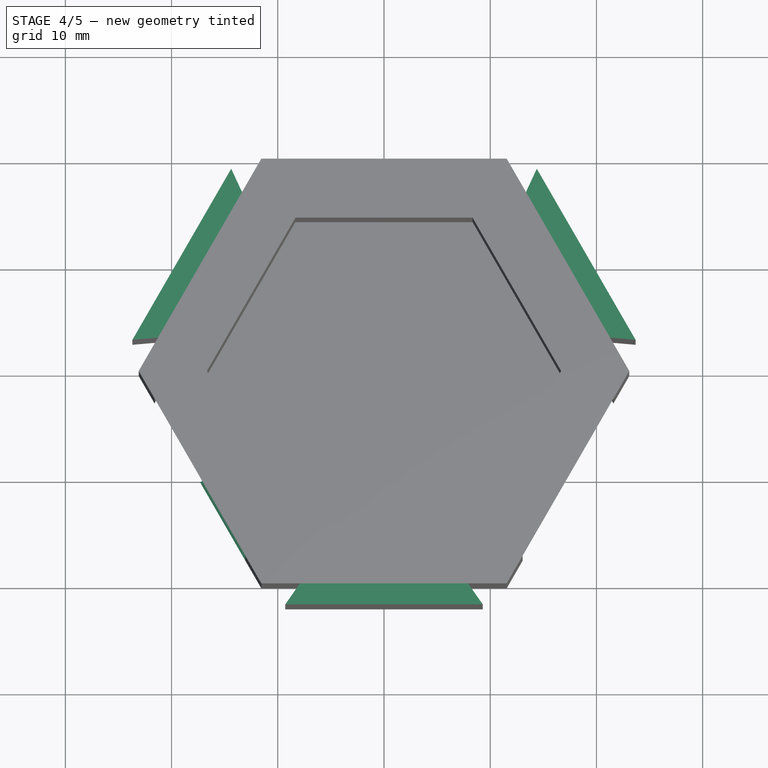
[diagram: stage 4 of 5 — top view after this stage's code; geometry added in this stage tinted green]
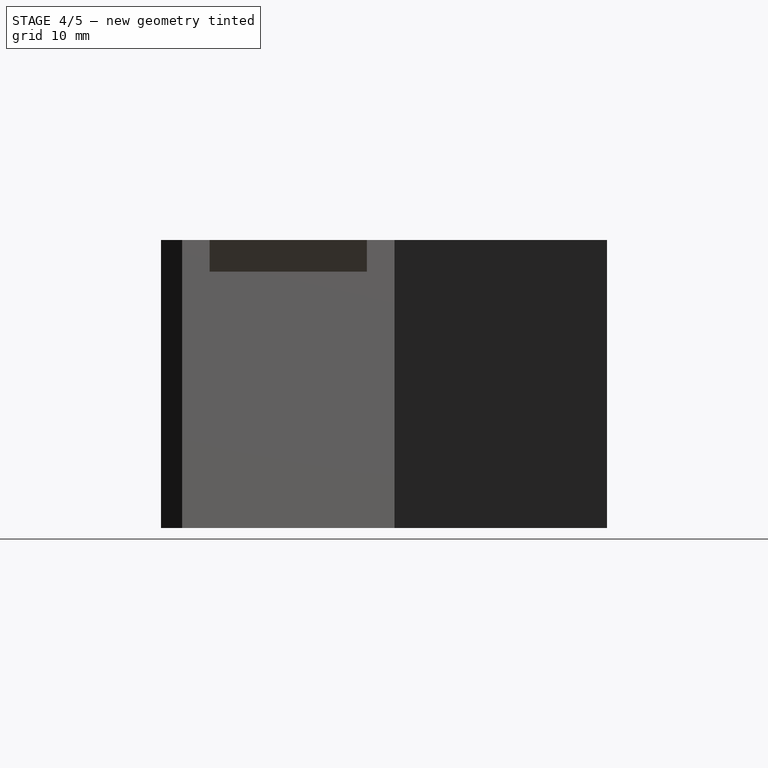
[diagram: stage 4 of 5 — right view after this stage's code; geometry added in this stage tinted green]
FEATURE [Sketcher::SketchObject] Sketch025
  ExternalGeometry = -> [Pad008]
  FullyConstrained = true
  MapMode = 5
  Placement = pos=(0,0,24) rot=(0,0,1;0rad)
  Support = -> [Pad008]
  TreeRank = 0
  expr: Constraints[9] = Spreadsheet.joint_depth
  sketch-geometry (7):
    g0: LineSegment StartX=-21.594 StartY=-2.59808 StartZ=0 EndX=-20.3042 EndY=0.167918 EndZ=0
    g1: LineSegment StartX=-20.3042 StartY=0.167918 StartZ=0 EndX=-10.0067 EndY=-17.6679 EndZ=0
    g2: LineSegment StartX=-21.594 StartY=-2.59808 StartZ=0 EndX=-13.047 EndY=-17.4019 EndZ=0
    g3: LineSegment StartX=-13.047 StartY=-17.4019 StartZ=0 EndX=-10.0067 EndY=-17.6679 EndZ=0
    g4: LineSegment [constr] StartX=-15.1554 StartY=-8.75 StartZ=0 EndX=-17.3205 EndY=-10 EndZ=0
    g5: LineSegment [constr] StartX=-23.094 StartY=7.28e-13 StartZ=0 EndX=-21.594 EndY=-2.59808 EndZ=0
    g6: LineSegment [constr] StartX=-13.047 StartY=-17.4019 StartZ=0 EndX=-11.547 EndY=-20 EndZ=0
  constraints (19):
    c: Coincident(g1,g0)
    c: Coincident(g2,g0)
    c: Angle(g2,g0) = 2.18166
    c: Coincident(g2,g3)
    c: Coincident(g1,g3)
    c: Angle(g3,g2) = 2.18166
    c: Parallel(g1,g2)
    c: PointOnObject(g4,g1)
    c: Perpendicular(g1,g4)
    c: Distance(g4) = 2.5
    c: Coincident(g5,g-6)
    c: Coincident(g5,g0)
    c: Coincident(g6,g2)
    c: Coincident(g6,g-6)
    c: Equal(g5,g6)
    c: PointOnObject(g0,g-6)
    c: PointOnObject(g2,g-6)
    c: Distance(g5) = 3
    c: Symmetric(g0,g2,g4)
FEATURE [PartDesign::Pocket] Pocket011
  AddSubType = 1
  BaseFeature = -> Pad008
  CheckUpToFaceLimits = true
  ClaimChildren = false
  Fit = 0
  FitJoin = 0
  InnerFit = 0
  InnerFitJoin = 0
  InnerTaperAngle = 0
  InnerTaperAngleRev = 0
  Length = 5
  Length2 = 100
  NewSolid = false
  Profile = -> Sketch025
  Suppress = false
  TreeRank = 0
  Type = 1
  _ProfileBasedVersion = 0
  _Version = 0
FEATURE [PartDesign::PolarPattern] PolarPattern004
  AddSubType = 0
  Angle = 360
  Axis = -> Sketch025 [N_Axis]
  BaseFeature = -> Pocket011
  CopyShape = true
  NewSolid = false
  Occurrences = 3
  OriginalSubs = -> [Pocket011]
  Originals = -> [Pocket011]
  ParallelTransform = true
  SubTransform = true
  Suppress = false
  TreeRank = 0
  _Version = 0
FEATURE [Sketcher::SketchObject] Sketch026
  ExternalGeometry = -> [Pad008]
  FullyConstrained = true
  MapMode = 5
  Placement = pos=(0,0,24) rot=(0,0,1;0rad)
  Support = -> [PolarPattern004]
  TreeRank = 0
  expr: Constraints[17] = Sketch025.Constraints[17]
  expr: Constraints[2] = Sketch025.Constraints[2]
  expr: Constraints[57] = Spreadsheet.joint_clearance
  expr: Constraints[5] = Sketch025.Constraints[5]
  expr: Constraints[9] = Sketch025.Constraints[9]
  sketch-geometry (21):
    g0: LineSegment [constr] StartX=-21.594 StartY=-2.59808 StartZ=0 EndX=-20.3042 EndY=0.167918 EndZ=0
    g1: LineSegment [constr] StartX=-20.3042 StartY=0.167918 StartZ=0 EndX=-10.0067 EndY=-17.6679 EndZ=0
    g2: LineSegment [constr] StartX=-21.594 StartY=-2.59808 StartZ=0 EndX=-13.047 EndY=-17.4019 EndZ=0
    g3: LineSegment [constr] StartX=-13.047 StartY=-17.4019 StartZ=0 EndX=-10.0067 EndY=-17.6679 EndZ=0
    g4: LineSegment [constr] StartX=-15.1554 StartY=-8.75 StartZ=0 EndX=-17.3205 EndY=-10 EndZ=0
    g5: LineSegment [constr] StartX=-23.094 StartY=7.28e-13 StartZ=0 EndX=-21.594 EndY=-2.59808 EndZ=0
    g6: LineSegment [constr] StartX=-13.047 StartY=-17.4019 StartZ=0 EndX=-11.547 EndY=-20 EndZ=0
    g7: LineSegment [constr] StartX=13.047 StartY=17.4019 StartZ=0 EndX=14.3368 EndY=20.1679 EndZ=0
    g8: LineSegment [constr] StartX=14.3368 StartY=20.1679 StartZ=0 EndX=24.6343 EndY=2.33208 EndZ=0
    g9: LineSegment [constr] StartX=13.047 StartY=17.4019 StartZ=0 EndX=21.594 EndY=2.59808 EndZ=0
    g10: LineSegment [constr] StartX=21.594 StartY=2.59808 StartZ=0 EndX=24.6343 EndY=2.33208 EndZ=0
    g11: LineSegment [constr] StartX=19.4856 StartY=11.25 StartZ=0 EndX=17.3205 EndY=10 EndZ=0
    g12: LineSegment [constr] StartX=11.547 StartY=20 StartZ=0 EndX=13.047 EndY=17.4019 EndZ=0
    g13: LineSegment [constr] StartX=21.594 StartY=2.59808 StartZ=0 EndX=23.094 EndY=-7.292e-13 EndZ=0
    g14: LineSegment StartX=13.3644 StartY=16.8522 StartZ=0 EndX=21.2766 EndY=3.14783 EndZ=0
    g15: LineSegment StartX=21.2766 StartY=3.14783 StartZ=0 EndX=23.6845 EndY=2.93716 EndZ=0
    g16: LineSegment StartX=23.6845 StartY=2.93716 StartZ=0 EndX=14.3859 EndY=19.0428 EndZ=0
    g17: LineSegment StartX=14.3859 StartY=19.0428 StartZ=0 EndX=13.3644 EndY=16.8522 EndZ=0
    g18: LineSegment [constr] StartX=14.3859 StartY=19.0428 StartZ=0 EndX=13.9147 EndY=19.2626 EndZ=0
    g19: LineSegment [constr] StartX=14.3859 StartY=19.0428 StartZ=0 EndX=14.8363 EndY=19.3028 EndZ=0
    g20: LineSegment [constr] StartX=23.6845 StartY=2.93716 StartZ=0 EndX=23.6392 EndY=2.41914 EndZ=0
  constraints (59):
    c: Coincident(g1,g0)
    c: Coincident(g2,g0)
    c: Angle(g2,g0) = 2.18166
    c: Coincident(g2,g3)
    c: Coincident(g1,g3)
    c: Angle(g3,g2) = 2.18166
    c: Parallel(g1,g2)
    c: PointOnObject(g4,g1)
    c: Perpendicular(g1,g4)
    c: Distance(g4) = 2.5
    c: Coincident(g5,g-6)
    c: Coincident(g5,g0)
    c: Coincident(g6,g2)
    c: Coincident(g6,g-6)
    c: Equal(g5,g6)
    c: PointOnObject(g0,g-6)
    c: PointOnObject(g2,g-6)
    c: Distance(g5) = 3
    c: Symmetric(g0,g2,g4)
    c: Coincident(g8,g7)
    c: Coincident(g9,g7)
    c: Angle(g9,g7) = 2.18166
    c: Coincident(g9,g10)
    c: Coincident(g8,g10)
    c: Angle(g10,g9) = 2.18166
    c: Parallel(g8,g9)
    c: PointOnObject(g11,g8)
    c: Perpendicular(g8,g11)
    c: Equal(g4,g11) = 1.5
    c: Coincident(g12,g7)
    c: Coincident(g13,g9)
    c: Equal(g12,g13)
    c: Equal(g5,g12) = 3
    c: Symmetric(g7,g9,g11)
    c: Coincident(g12,g-7)
    c: Coincident(g13,g-7)
    c: PointOnObject(g7,g-7)
    c: PointOnObject(g9,g-7)
    c: PointOnObject(g14,g9)
    c: PointOnObject(g14,g9)
    c: Coincident(g14,g15)
    c: Coincident(g15,g16)
    c: Coincident(g16,g17)
    c: Coincident(g17,g14)
    c: Parallel(g16,g8)
    c: Parallel(g17,g7)
    c: Parallel(g10,g15)
    c: Coincident(g18,g16)
    c: PointOnObject(g18,g7)
    c: Coincident(g19,g16)
    c: PointOnObject(g19,g8)
    c: Coincident(g20,g15)
    c: PointOnObject(g20,g10)
    c: Perpendicular(g10,g20)
    c: Perpendicular(g16,g19)
    c: Perpendicular(g17,g18)
    c: Equal(g18,g19)
    c: Distance(g18) = 0.52
    c: Equal(g20,g19)
FEATURE [PartDesign::Pad] Pad009
  AddSubType = 0
  BaseFeature = -> PolarPattern004
  CheckUpToFaceLimits = true
  ClaimChildren = false
  Direction = (0,0,1)
  Fit = 0
  FitJoin = 0
  InnerFit = 0
  InnerFitJoin = 0
  InnerTaperAngle = 0
  InnerTaperAngleRev = 0
  Length = 10
  Length2 = 100
  NewSolid = false
  Profile = -> Sketch026
  Reversed = true
  Suppress = false
  TreeRank = 0
  Type = 3
  UpToFace = -> PolarPattern004 [Face7]
  _ProfileBasedVersion = 0
FEATURE [PartDesign::PolarPattern] PolarPattern005
  AddSubType = 0
  Angle = 360
  Axis = -> Sketch026 [N_Axis]
  BaseFeature = -> Pad009
  CopyShape = true
  NewSolid = false
  Occurrences = 3
  OriginalSubs = -> [Pad009]
  Originals = -> [Pad009]
  ParallelTransform = true
  SubTransform = true
  Suppress = false
  TreeRank = 0
  _Version = 0
FEATURE [Sketcher::SketchObject] Sketch027
  ExternalGeometry = -> [Pad009]
  FullyConstrained = true
  MapMode = 5
  Placement = pos=(0,0,0) rot=(0.935113,0.250563,0.250563;1.63783rad)
  Support = -> [DatumPlane002]
  TreeRank = 0
  expr: Constraints[6] = Spreadsheet.joint_ledge_angle
  sketch-geometry (3):
    g0: LineSegment StartX=-20 StartY=-3.12 StartZ=0 EndX=-17.5 EndY=-3.12 EndZ=0
    g1: LineSegment StartX=-17.5 StartY=-3.12 StartZ=0 EndX=-17.5 EndY=-0.140616 EndZ=0
    g2: LineSegment StartX=-17.5 StartY=-0.140616 StartZ=0 EndX=-20 EndY=-3.12 EndZ=0
  constraints (7):
    c: Coincident(g-6,g0)
    c: Coincident(g0,g-4)
    c: Coincident(g0,g1)
    c: PointOnObject(g1,g-7)
    c: Coincident(g1,g2)
    c: Coincident(g2,g0)
    c: Angle(g2,g1) = 0.698132
FEATURE [PartDesign::Pad] Pad010
  AddSubType = 0
  AlongSketchNormal = false
  BaseFeature = -> PolarPattern005
  CheckUpToFaceLimits = true
  ClaimChildren = false
  Direction = (0.5,-0.866025,-1e-16)
  Fit = 0
  FitJoin = 0
  InnerFit = 0
  InnerFitJoin = 0
  InnerTaperAngle = 0
  InnerTaperAngleRev = 0
  Length = 10
  Length2 = 100
  NewSolid = false
  Profile = -> Sketch027
  Suppress = false
  TreeRank = 0
  Type = 3
  UpToFace = -> PolarPattern005 [Face10]
  _ProfileBasedVersion = 0
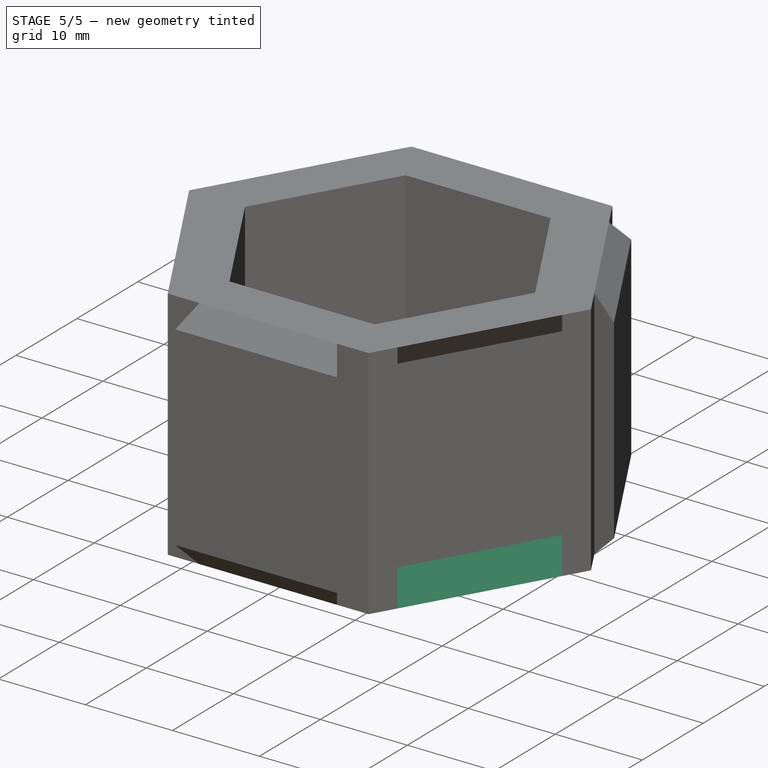
[diagram: stage 5 of 5 — iso view after this stage's code; geometry added in this stage tinted green]
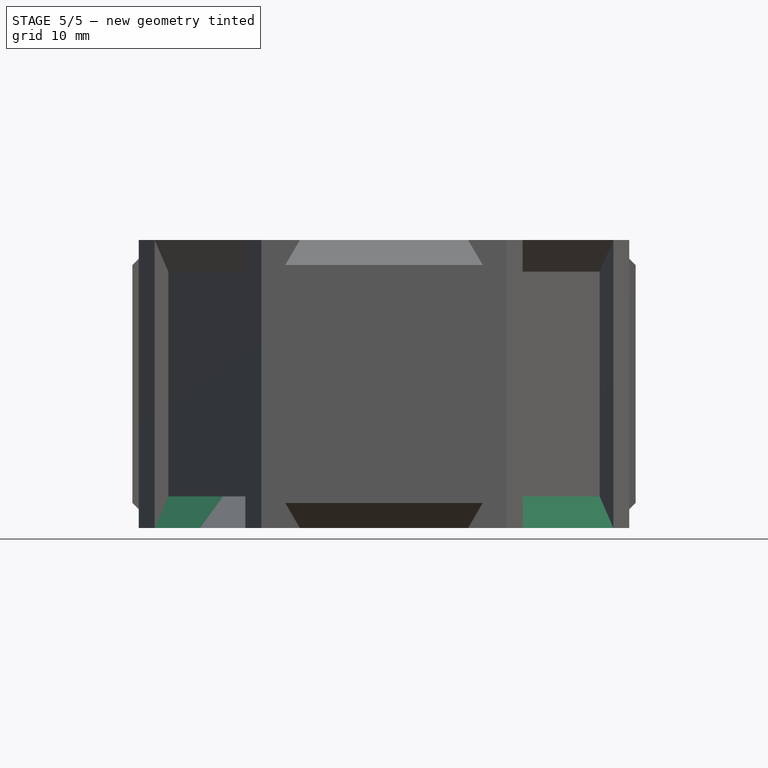
[diagram: stage 5 of 5 — front view after this stage's code; geometry added in this stage tinted green]
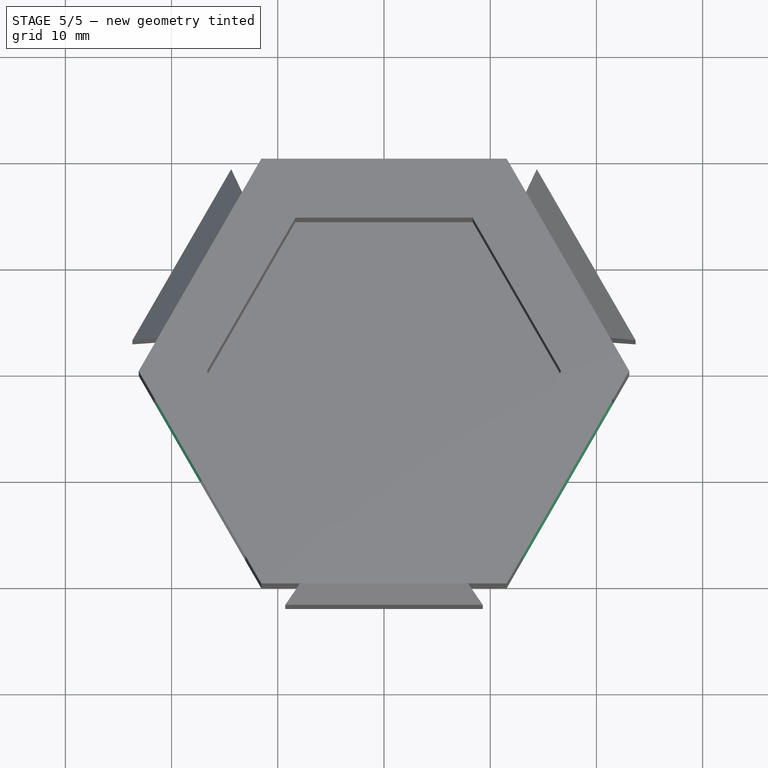
[diagram: stage 5 of 5 — top view after this stage's code; geometry added in this stage tinted green]
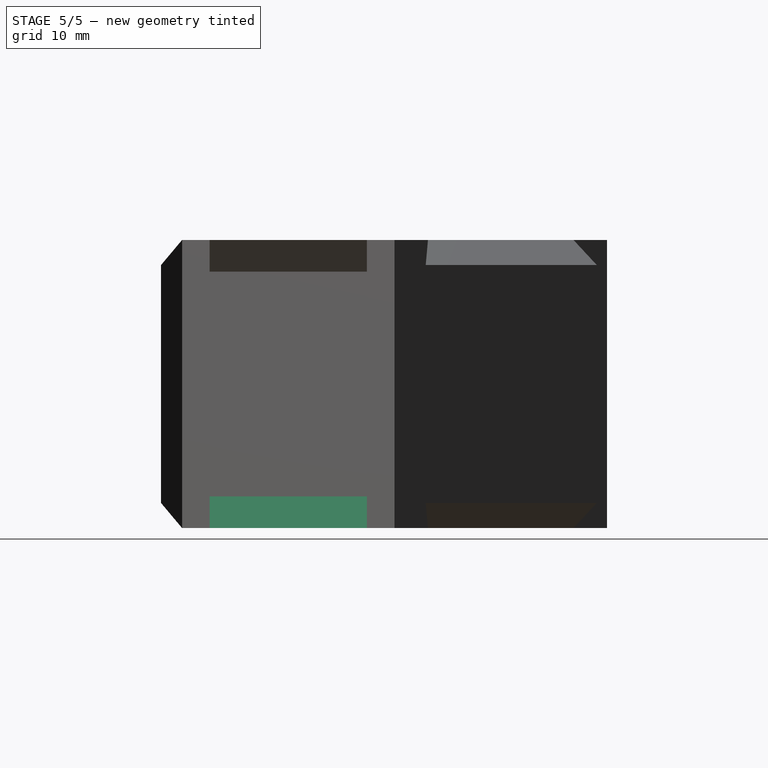
[diagram: stage 5 of 5 — right view after this stage's code; geometry added in this stage tinted green]
FEATURE [PartDesign::Mirrored] Mirrored005
  AddSubType = 0
  BaseFeature = -> Pad010
  CopyShape = true
  MirrorPlane = -> DatumPlane002
  NewSolid = false
  OriginalSubs = -> [Pad010]
  Originals = -> [Pad010]
  ParallelTransform = true
  SubTransform = true
  Suppress = false
  TreeRank = 0
  _Version = 0
FEATURE [PartDesign::PolarPattern] PolarPattern006
  AddSubType = 0
  Angle = 360
  Axis = -> Z_Axis004
  BaseFeature = -> Mirrored005
  CopyShape = true
  NewSolid = false
  Occurrences = 3
  OriginalSubs = -> [Mirrored005,Pad010]
  Originals = -> [Mirrored005,Pad010]
  ParallelTransform = true
  SubTransform = true
  Suppress = false
  TreeRank = 0
  _Version = 0
FEATURE [Sketcher::SketchObject] Sketch028
  ExternalGeometry = -> [PolarPattern005,PolarPattern006]
  FullyConstrained = true
  MapMode = 5
  Placement = pos=(0,0,0) rot=(0.935113,-0.250563,-0.250563;1.63783rad)
  Support = -> [DatumPlane003]
  TreeRank = 0
  expr: Constraints[12] = 90 - Spreadsheet.joint_ledge_angle
  expr: Constraints[13] = 90 - Spreadsheet.joint_ledge_angle
  sketch-geometry (6):
    g0: LineSegment StartX=-20 StartY=24 StartZ=0 EndX=-21.98 EndY=24 EndZ=0
    g1: LineSegment StartX=-21.98 StartY=24 StartZ=0 EndX=-21.98 EndY=21.6403 EndZ=0
    g2: LineSegment StartX=-21.98 StartY=21.6403 StartZ=0 EndX=-20 EndY=24 EndZ=0
    g3: LineSegment StartX=-21.98 StartY=-3.12 StartZ=0 EndX=-21.98 EndY=-0.760328 EndZ=0
    g4: LineSegment StartX=-21.98 StartY=-0.760328 StartZ=0 EndX=-20 EndY=-3.12 EndZ=0
    g5: LineSegment StartX=-20 StartY=-3.12 StartZ=0 EndX=-21.98 EndY=-3.12 EndZ=0
  constraints (14):
    c: Coincident(g-5,g0)
    c: Coincident(g0,g-4)
    c: Coincident(g0,g1)
    c: PointOnObject(g1,g-4)
    c: Coincident(g1,g2)
    c: Coincident(g2,g0)
    c: Coincident(g-6,g3)
    c: PointOnObject(g3,g-4)
    c: Coincident(g3,g4)
    c: Coincident(g4,g-7)
    c: Coincident(g4,g5)
    c: Coincident(g5,g3)
    c: Angle(g0,g2) = 0.872665
    c: Angle(g4,g5) = 0.872665
FEATURE [PartDesign::Pocket] Pocket012
  AddSubType = 1
  BaseFeature = -> PolarPattern006
  CheckUpToFaceLimits = true
  ClaimChildren = false
  Fit = 0
  FitJoin = 0
  InnerFit = 0
  InnerFitJoin = 0
  InnerTaperAngle = 0
  InnerTaperAngleRev = 0
  Length = 0
  Length2 = 100
  NewSolid = false
  Profile = -> Sketch028
  Suppress = false
  TreeRank = 0
  Type = 3
  UpToFace = -> PolarPattern006 [Face59]
  _ProfileBasedVersion = 0
  _Version = 0
FEATURE [PartDesign::Mirrored] Mirrored006
  AddSubType = 0
  BaseFeature = -> Pocket012
  CopyShape = true
  MirrorPlane = -> DatumPlane003
  NewSolid = false
  OriginalSubs = -> [Pocket012]
  Originals = -> [Pocket012]
  ParallelTransform = true
  SubTransform = true
  Suppress = false
  TreeRank = 0
  _Version = 0
FEATURE [PartDesign::PolarPattern] PolarPattern007
  AddSubType = 0
  Angle = 360
  Axis = -> Z_Axis004
  BaseFeature = -> Mirrored006
  CopyShape = true
  NewSolid = false
  Occurrences = 3
  OriginalSubs = -> [Mirrored006,Pocket012]
  Originals = -> [Mirrored006,Pocket012]
  ParallelTransform = true
  SubTransform = true
  Suppress = false
  TreeRank = 0
  _Version = 0
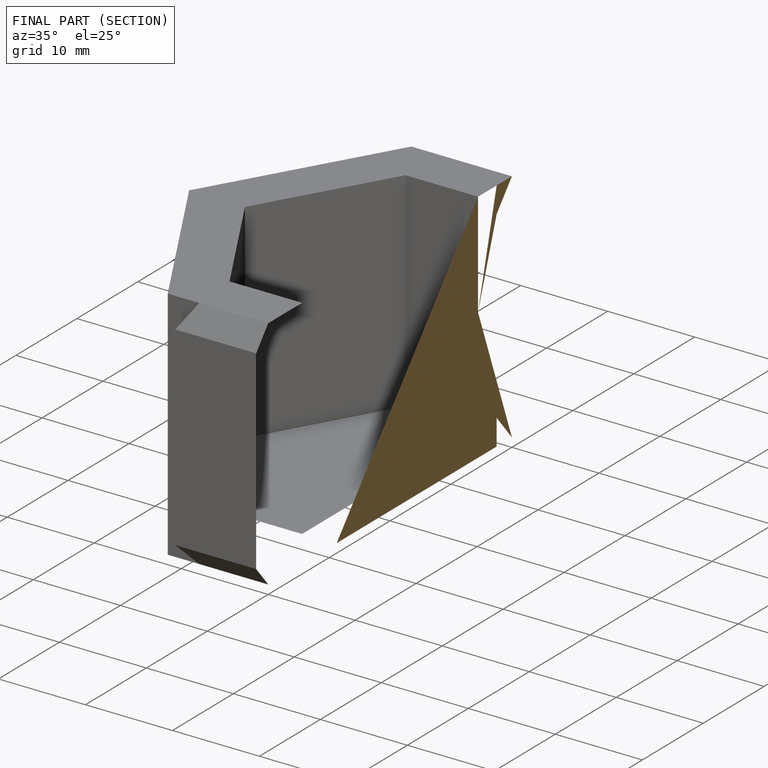
[diagram: finished part — half-section view (interior)]
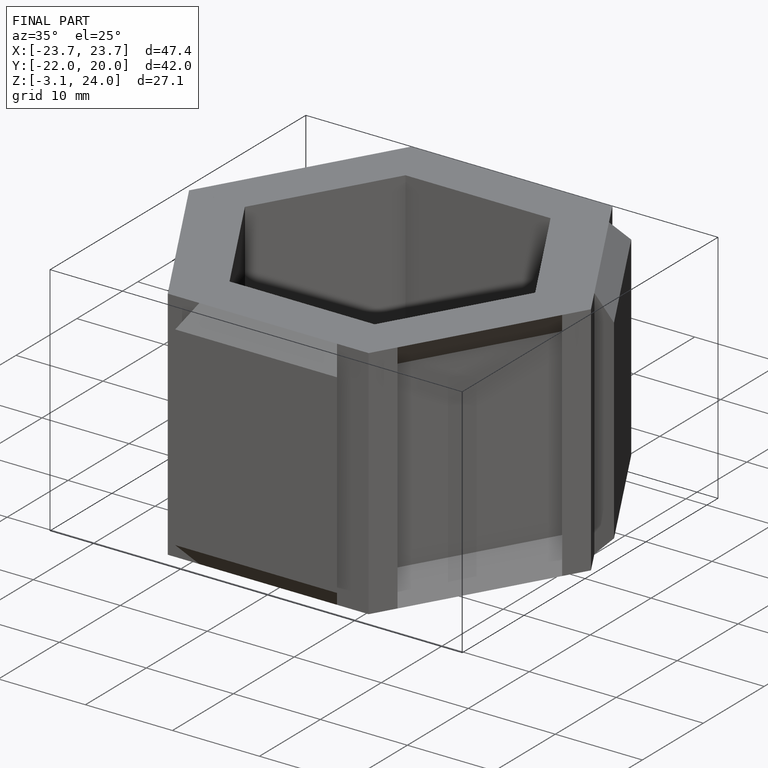
[diagram: finished part — iso view with bounding-box wireframe]
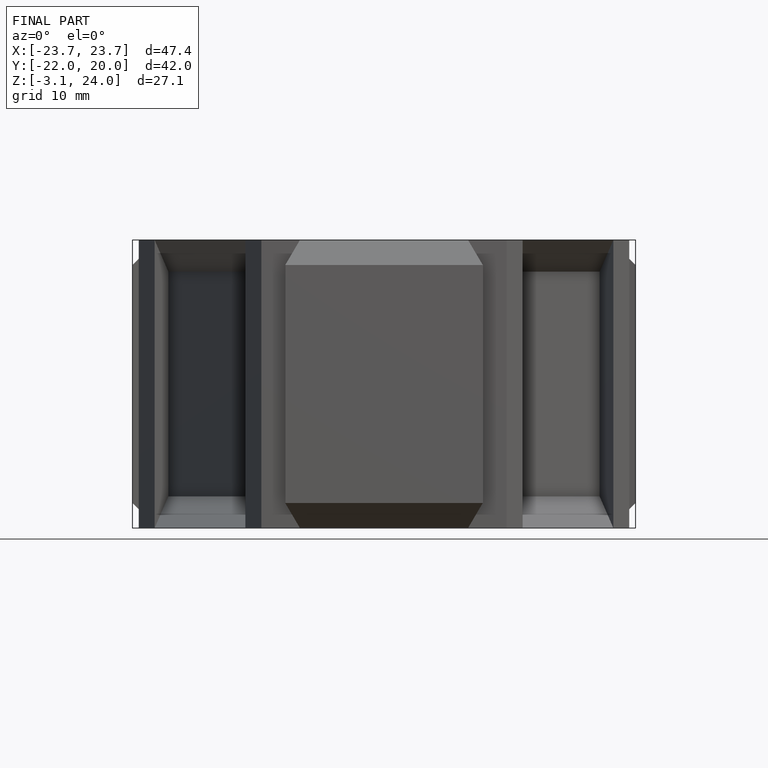
[diagram: finished part — front view with bounding-box wireframe]
